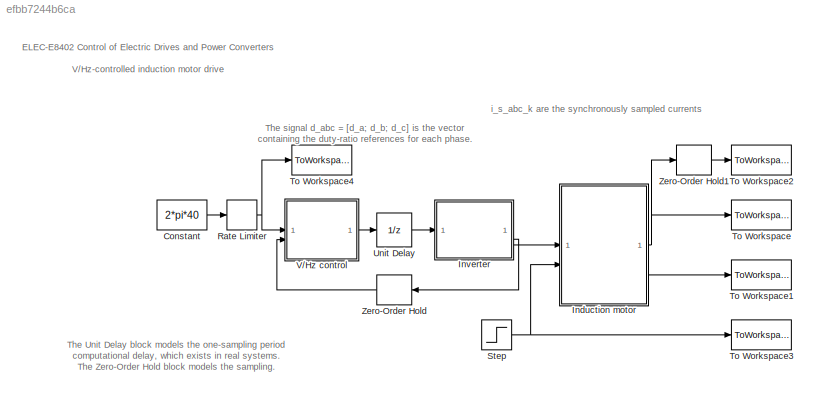
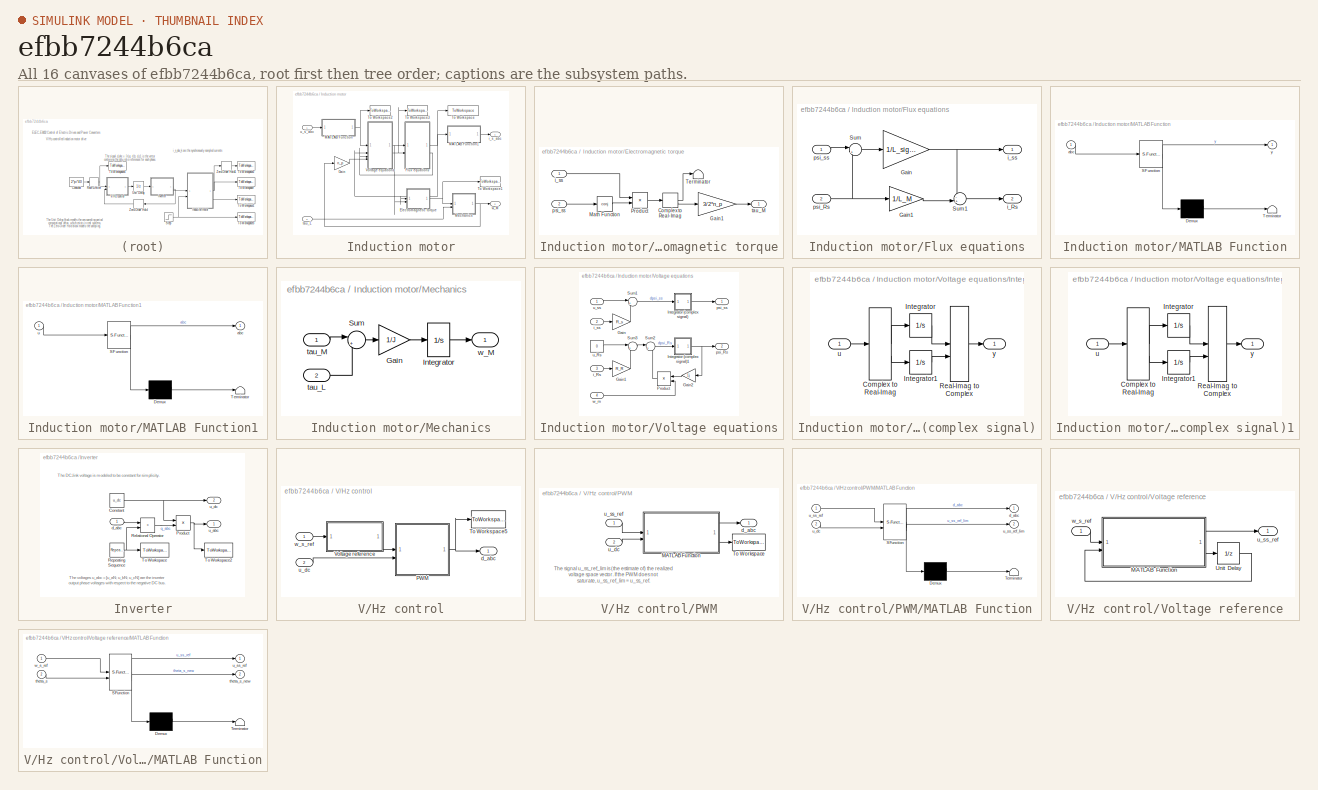
[diagram: thumbnail index - all 16 canvases of the model, root first then tree order]
MODEL slx_efbb7244b6ca
KIND model
CONFIG AbsTol = 1e-3
CONFIG EnableMultiTasking = on
CONFIG FixedStep = auto
CONFIG MaxStep = T_s
CONFIG MinStep = auto
CONFIG RelTol = 1e-3
CONFIG SampleTimeConstraint = Unconstrained
CONFIG SolverName = ode45
CONFIG StartTime = 0
CONFIG StopTime = 1
BLOCK [Constant] Constant
  SampleTime = T_s
  Value = 2*pi*40
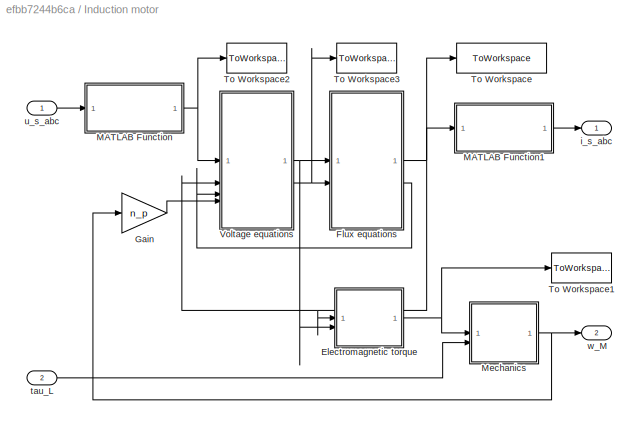
BLOCK [SubSystem] Induction motor
BLOCK [SubSystem] Induction motor/Electromagnetic torque
BLOCK [ComplexToRealImag] Induction motor/Electromagnetic torque/Complex to Real-Imag
BLOCK [Gain] Induction motor/Electromagnetic torque/Gain1
  Gain = 3/2*n_p
BLOCK [Math] Induction motor/Electromagnetic torque/Math Function
  Operator = conj
BLOCK [Product] Induction motor/Electromagnetic torque/Product
BLOCK [Terminator] Induction motor/Electromagnetic torque/Terminator
BLOCK [Inport] Induction motor/Electromagnetic torque/i_ss
BLOCK [Inport] Induction motor/Electromagnetic torque/psi_ss
  Port = 2
BLOCK [Outport] Induction motor/Electromagnetic torque/tau_M
BLOCK [SubSystem] Induction motor/Flux equations
BLOCK [Gain] Induction motor/Flux equations/Gain
  Gain = 1/L_sigma
BLOCK [Gain] Induction motor/Flux equations/Gain1
  Gain = 1/L_M
BLOCK [Sum] Induction motor/Flux equations/Sum
  Inputs = |+-
BLOCK [Sum] Induction motor/Flux equations/Sum1
  Inputs = -+|
BLOCK [Outport] Induction motor/Flux equations/i_Rs
  Port = 2
BLOCK [Outport] Induction motor/Flux equations/i_ss
BLOCK [Inport] Induction motor/Flux equations/psi_Rs
  Port = 2
BLOCK [Inport] Induction motor/Flux equations/psi_ss
BLOCK [Gain] Induction motor/Gain
  Gain = n_p
  OutDataTypeStr = Inherit: Same as input
  ParamDataTypeStr = Inherit: Same as input
  SaturateOnIntegerOverflow = on
BLOCK [SubSystem] Induction motor/MATLAB Function
  ErrorFcn = Stateflow.Translate.translate
  LibrarySourceBlock = simulink/User-Defined\nFunctions/MATLAB Function
  PermitHierarchicalResolution = ExplicitOnly
  SFBlockType = MATLAB Function
  ShowPortLabels = none
  TreatAsAtomicUnit = on
BLOCK [Demux] Induction motor/MATLAB Function/ Demux 
  Outputs = 1
BLOCK [S-Function] Induction motor/MATLAB Function/ SFunction 
  EnableBusSupport = on
  FunctionName = sf_sfun
  PortCounts = [1 2]
  SFcnIsStateOwnerBlock = off
  SFunctionDeploymentMode = off
  Tag = Stateflow S-Function 4
BLOCK [Terminator] Induction motor/MATLAB Function/ Terminator 
BLOCK [Inport] Induction motor/MATLAB Function/abc
BLOCK [Outport] Induction motor/MATLAB Function/y
BLOCK [SubSystem] Induction motor/MATLAB Function1
  ErrorFcn = Stateflow.Translate.translate
  LibrarySourceBlock = simulink/User-Defined\nFunctions/MATLAB Function
  PermitHierarchicalResolution = ExplicitOnly
  SFBlockType = MATLAB Function
  ShowPortLabels = none
  TreatAsAtomicUnit = on
BLOCK [Demux] Induction motor/MATLAB Function1/ Demux 
  Outputs = 1
BLOCK [S-Function] Induction motor/MATLAB Function1/ SFunction 
  EnableBusSupport = on
  FunctionName = sf_sfun
  PortCounts = [1 2]
  SFcnIsStateOwnerBlock = off
  SFunctionDeploymentMode = off
  Tag = Stateflow S-Function 3
BLOCK [Terminator] Induction motor/MATLAB Function1/ Terminator 
BLOCK [Outport] Induction motor/MATLAB Function1/abc
BLOCK [Inport] Induction motor/MATLAB Function1/u
BLOCK [SubSystem] Induction motor/Mechanics
BLOCK [Gain] Induction motor/Mechanics/Gain
  Gain = 1/J
  OutDataTypeStr = Inherit: Same as input
  ParamDataTypeStr = Inherit: Same as input
  SaturateOnIntegerOverflow = on
BLOCK [Integrator] Induction motor/Mechanics/Integrator
BLOCK [Sum] Induction motor/Mechanics/Sum
  InputSameDT = on
  Inputs = |+-
  OutDataTypeStr = Inherit: Same as first input
  SaturateOnIntegerOverflow = on
BLOCK [Inport] Induction motor/Mechanics/tau_L
  Port = 2
BLOCK [Inport] Induction motor/Mechanics/tau_M
BLOCK [Outport] Induction motor/Mechanics/w_M
BLOCK [ToWorkspace] Induction motor/To Workspace
  FixptAsFi = on
  MaxDataPoints = inf
  SampleTime = -1
  SaveFormat = Timeseries
  VariableName = i_ss
BLOCK [ToWorkspace] Induction motor/To Workspace1
  FixptAsFi = on
  MaxDataPoints = inf
  SampleTime = -1
  SaveFormat = Timeseries
  VariableName = tau_M
BLOCK [ToWorkspace] Induction motor/To Workspace2
  FixptAsFi = on
  MaxDataPoints = inf
  SampleTime = -1
  SaveFormat = Timeseries
  VariableName = u_ss
BLOCK [ToWorkspace] Induction motor/To Workspace3
  FixptAsFi = on
  MaxDataPoints = inf
  SampleTime = -1
  SaveFormat = Timeseries
  VariableName = psi_Rs
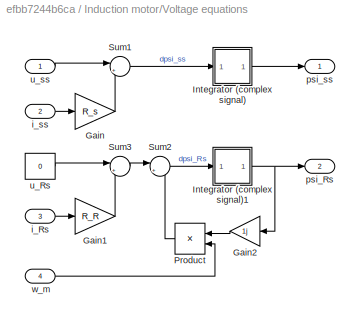
BLOCK [SubSystem] Induction motor/Voltage equations
BLOCK [Gain] Induction motor/Voltage equations/Gain
  Gain = R_s
BLOCK [Gain] Induction motor/Voltage equations/Gain1
  Gain = R_R
BLOCK [Gain] Induction motor/Voltage equations/Gain2
  Gain = 1j
BLOCK [SubSystem] Induction motor/Voltage equations/Integrator (complex signal)
BLOCK [ComplexToRealImag] Induction motor/Voltage equations/Integrator (complex signal)/Complex to Real-Imag
BLOCK [Integrator] Induction motor/Voltage equations/Integrator (complex signal)/Integrator
BLOCK [Integrator] Induction motor/Voltage equations/Integrator (complex signal)/Integrator1
BLOCK [RealImagToComplex] Induction motor/Voltage equations/Integrator (complex signal)/Real-Imag to Complex
BLOCK [Inport] Induction motor/Voltage equations/Integrator (complex signal)/u
BLOCK [Outport] Induction motor/Voltage equations/Integrator (complex signal)/y
BLOCK [SubSystem] Induction motor/Voltage equations/Integrator (complex signal)1
BLOCK [ComplexToRealImag] Induction motor/Voltage equations/Integrator (complex signal)1/Complex to Real-Imag
BLOCK [Integrator] Induction motor/Voltage equations/Integrator (complex signal)1/Integrator
BLOCK [Integrator] Induction motor/Voltage equations/Integrator (complex signal)1/Integrator1
BLOCK [RealImagToComplex] Induction motor/Voltage equations/Integrator (complex signal)1/Real-Imag to Complex
BLOCK [Inport] Induction motor/Voltage equations/Integrator (complex signal)1/u
BLOCK [Outport] Induction motor/Voltage equations/Integrator (complex signal)1/y
BLOCK [Product] Induction motor/Voltage equations/Product
  RndMeth = Zero
BLOCK [Sum] Induction motor/Voltage equations/Sum1
  Inputs = |+-
BLOCK [Sum] Induction motor/Voltage equations/Sum2
  Inputs = |++
BLOCK [Sum] Induction motor/Voltage equations/Sum3
  Inputs = |+-
BLOCK [Inport] Induction motor/Voltage equations/i_Rs
  Port = 3
BLOCK [Inport] Induction motor/Voltage equations/i_ss
  Port = 2
BLOCK [Outport] Induction motor/Voltage equations/psi_Rs
  Port = 2
BLOCK [Outport] Induction motor/Voltage equations/psi_ss
BLOCK [Constant] Induction motor/Voltage equations/u_Rs
  SampleTime = 0
  Value = 0
BLOCK [Inport] Induction motor/Voltage equations/u_ss
BLOCK [Inport] Induction motor/Voltage equations/w_m
  Port = 4
BLOCK [Outport] Induction motor/i_s_abc
BLOCK [Inport] Induction motor/tau_L
  Port = 2
BLOCK [Inport] Induction motor/u_s_abc
BLOCK [Outport] Induction motor/w_M
  Port = 2
BLOCK [SubSystem] Inverter
BLOCK [Constant] Inverter/Constant
  SampleTime = 0
  Value = u_dc
BLOCK [Product] Inverter/Product
BLOCK [RelationalOperator] Inverter/Relational Operator
  InputSameDT = off
  Operator = >
  OutDataTypeStr = boolean
BLOCK [Reference] Inverter/Repeating Sequence  REF=simulink/Sources/Repeating
Sequence
  SourceBlock = simulink/Sources/Repeating\nSequence
  SourceType = Repeating table
BLOCK [ToWorkspace] Inverter/To Workspace
  FixptAsFi = on
  MaxDataPoints = inf
  SampleTime = -1
  SaveFormat = Timeseries
  VariableName = tri
BLOCK [ToWorkspace] Inverter/To Workspace2
  FixptAsFi = on
  MaxDataPoints = inf
  SampleTime = -1
  SaveFormat = Timeseries
  VariableName = u_abc
BLOCK [Inport] Inverter/d_abc
BLOCK [Outport] Inverter/u_abc
BLOCK [Outport] Inverter/u_dc
  Port = 2
BLOCK [RateLimiter] Rate Limiter
  FallingSlewLimit = -2*pi*100
  RisingSlewLimit = 2*pi*100
  SampleTimeMode = inherited
BLOCK [Step] Step
  After = T_L
  SampleTime = 0
  Time = .6
BLOCK [ToWorkspace] To Workspace
  FixptAsFi = on
  MaxDataPoints = inf
  SampleTime = -1
  SaveFormat = Timeseries
  VariableName = i_s_abc
BLOCK [ToWorkspace] To Workspace1
  FixptAsFi = on
  MaxDataPoints = inf
  SampleTime = -1
  SaveFormat = Timeseries
  VariableName = w_M
BLOCK [ToWorkspace] To Workspace2
  FixptAsFi = on
  MaxDataPoints = inf
  SampleTime = -1
  SaveFormat = Timeseries
  VariableName = i_s_abc_k
BLOCK [ToWorkspace] To Workspace3
  FixptAsFi = on
  MaxDataPoints = inf
  SampleTime = -1
  SaveFormat = Timeseries
  VariableName = tau_L
BLOCK [ToWorkspace] To Workspace4
  FixptAsFi = on
  MaxDataPoints = inf
  SampleTime = -1
  SaveFormat = Timeseries
  VariableName = w_s_ref
BLOCK [UnitDelay] Unit Delay
  HasFrameUpgradeWarning = on
  SampleTime = T_s
BLOCK [SubSystem] V//Hz control
BLOCK [SubSystem] V//Hz control/PWM
BLOCK [SubSystem] V//Hz control/PWM/MATLAB Function
  ErrorFcn = Stateflow.Translate.translate
  PermitHierarchicalResolution = ExplicitOnly
  SFBlockType = MATLAB Function
  TreatAsAtomicUnit = on
BLOCK [Demux] V//Hz control/PWM/MATLAB Function/ Demux 
  Outputs = 1
BLOCK [S-Function] V//Hz control/PWM/MATLAB Function/ SFunction 
  EnableBusSupport = on
  FunctionName = sf_sfun
  PortCounts = [2 3]
  SFcnIsStateOwnerBlock = off
  SFunctionDeploymentMode = off
  Tag = Stateflow S-Function 1
BLOCK [Terminator] V//Hz control/PWM/MATLAB Function/ Terminator 
BLOCK [Outport] V//Hz control/PWM/MATLAB Function/d_abc
BLOCK [Inport] V//Hz control/PWM/MATLAB Function/u_dc
  Port = 2
BLOCK [Inport] V//Hz control/PWM/MATLAB Function/u_ss_ref
BLOCK [Outport] V//Hz control/PWM/MATLAB Function/u_ss_ref_lim
  Port = 2
BLOCK [ToWorkspace] V//Hz control/PWM/To Workspace
  FixptAsFi = on
  MaxDataPoints = inf
  SampleTime = -1
  SaveFormat = Timeseries
  VariableName = u_ss_ref_lim
BLOCK [Outport] V//Hz control/PWM/d_abc
BLOCK [Inport] V//Hz control/PWM/u_dc
  Port = 2
BLOCK [Inport] V//Hz control/PWM/u_ss_ref
BLOCK [ToWorkspace] V//Hz control/To Workspace5
  FixptAsFi = on
  MaxDataPoints = inf
  SampleTime = -1
  SaveFormat = Timeseries
  VariableName = d_abc
BLOCK [SubSystem] V//Hz control/Voltage reference
BLOCK [SubSystem] V//Hz control/Voltage reference/MATLAB Function
  ErrorFcn = Stateflow.Translate.translate
  PermitHierarchicalResolution = ExplicitOnly
  SFBlockType = MATLAB Function
  TreatAsAtomicUnit = on
BLOCK [Demux] V//Hz control/Voltage reference/MATLAB Function/ Demux 
  Outputs = 1
BLOCK [S-Function] V//Hz control/Voltage reference/MATLAB Function/ SFunction 
  EnableBusSupport = on
  FunctionName = sf_sfun
  Parameters = T_s,psi_s_ref
  PortCounts = [2 3]
  SFcnIsStateOwnerBlock = off
  SFunctionDeploymentMode = off
  Tag = Stateflow S-Function 2
BLOCK [Terminator] V//Hz control/Voltage reference/MATLAB Function/ Terminator 
BLOCK [Inport] V//Hz control/Voltage reference/MATLAB Function/theta_s
  Port = 2
BLOCK [Outport] V//Hz control/Voltage reference/MATLAB Function/theta_s_new
  Port = 2
BLOCK [Outport] V//Hz control/Voltage reference/MATLAB Function/u_ss_ref
BLOCK [Inport] V//Hz control/Voltage reference/MATLAB Function/w_s_ref
BLOCK [UnitDelay] V//Hz control/Voltage reference/Unit Delay
  HasFrameUpgradeWarning = on
  SampleTime = -1
BLOCK [Outport] V//Hz control/Voltage reference/u_ss_ref
BLOCK [Inport] V//Hz control/Voltage reference/w_s_ref
BLOCK [Outport] V//Hz control/d_abc
BLOCK [Inport] V//Hz control/u_dc
  Port = 2
BLOCK [Inport] V//Hz control/w_s_ref
BLOCK [ZeroOrderHold] Zero-Order Hold
  SampleTime = T_s
BLOCK [ZeroOrderHold] Zero-Order Hold1
  SampleTime = T_s
ANNOTATION (root): ELEC-E8402 Control of Electric Drives and Power Converters V/Hz-controlled induction motor drive
ANNOTATION (root): The Unit Delay block models the one-sampling period computational delay, which exists in real systems. The Zero-Order Hold block models the sampling.
ANNOTATION (root): The signal d_abc = [d_a; d_b; d_c] is the vector containing the duty-ratio references for each phase.
ANNOTATION (root): i_s_abc_k are the synchronously sampled currents
ANNOTATION Inverter: The DC-link voltage is modeled to be constant for simplicity.
ANNOTATION Inverter: The voltages u_abc = [u_aN; u_bN; u_cN] are the inverter output phase voltages with respect to the negative DC bus.
ANNOTATION V//Hz control/PWM: The signal u_ss_ref_lim is (the estimate of) the realized voltage space vector. If the PWM does not saturate, u_ss_ref_lim = u_ss_ref.
LINE Constant:1 -> Rate Limiter:1
LINE Induction motor/Electromagnetic torque/Complex to Real-Imag:1 -> Induction motor/Electromagnetic torque/Terminator:1
LINE Induction motor/Electromagnetic torque/Complex to Real-Imag:2 -> Induction motor/Electromagnetic torque/Gain1:1
LINE Induction motor/Electromagnetic torque/Gain1:1 -> Induction motor/Electromagnetic torque/tau_M:1
LINE Induction motor/Electromagnetic torque/Math Function:1 -> Induction motor/Electromagnetic torque/Product:2
LINE Induction motor/Electromagnetic torque/Product:1 -> Induction motor/Electromagnetic torque/Complex to Real-Imag:1
LINE Induction motor/Electromagnetic torque/i_ss:1 -> Induction motor/Electromagnetic torque/Product:1
LINE Induction motor/Electromagnetic torque/psi_ss:1 -> Induction motor/Electromagnetic torque/Math Function:1
NET Induction motor/Electromagnetic torque:1 -> Induction motor/Mechanics:1, Induction motor/To Workspace1:1
LINE Induction motor/Flux equations/Gain1:1 -> Induction motor/Flux equations/Sum1:2
NET Induction motor/Flux equations/Gain:1 -> Induction motor/Flux equations/Sum1:1, Induction motor/Flux equations/i_ss:1
LINE Induction motor/Flux equations/Sum1:1 -> Induction motor/Flux equations/i_Rs:1
LINE Induction motor/Flux equations/Sum:1 -> Induction motor/Flux equations/Gain:1
NET Induction motor/Flux equations/psi_Rs:1 -> Induction motor/Flux equations/Gain1:1, Induction motor/Flux equations/Sum:2
LINE Induction motor/Flux equations/psi_ss:1 -> Induction motor/Flux equations/Sum:1
NET Induction motor/Flux equations:1 -> Induction motor/Electromagnetic torque:1, Induction motor/MATLAB Function1:1, Induction motor/To Workspace:1, Induction motor/Voltage equations:2
LINE Induction motor/Flux equations:2 -> Induction motor/Voltage equations:3
LINE Induction motor/Gain:1 -> Induction motor/Voltage equations:4
LINE Induction motor/MATLAB Function1:1 -> Induction motor/i_s_abc:1
NET Induction motor/MATLAB Function:1 -> Induction motor/To Workspace2:1, Induction motor/Voltage equations:1
LINE Induction motor/Mechanics/Gain:1 -> Induction motor/Mechanics/Integrator:1
LINE Induction motor/Mechanics/Integrator:1 -> Induction motor/Mechanics/w_M:1
LINE Induction motor/Mechanics/Sum:1 -> Induction motor/Mechanics/Gain:1
LINE Induction motor/Mechanics/tau_L:1 -> Induction motor/Mechanics/Sum:2
LINE Induction motor/Mechanics/tau_M:1 -> Induction motor/Mechanics/Sum:1
NET Induction motor/Mechanics:1 -> Induction motor/Gain:1, Induction motor/w_M:1
LINE Induction motor/Voltage equations/Gain1:1 -> Induction motor/Voltage equations/Sum3:2
LINE Induction motor/Voltage equations/Gain2:1 -> Induction motor/Voltage equations/Product:1
LINE Induction motor/Voltage equations/Gain:1 -> Induction motor/Voltage equations/Sum1:2
LINE Induction motor/Voltage equations/Integrator (complex signal)/Complex to Real-Imag:1 -> Induction motor/Voltage equations/Integrator (complex signal)/Integrator:1
LINE Induction motor/Voltage equations/Integrator (complex signal)/Complex to Real-Imag:2 -> Induction motor/Voltage equations/Integrator (complex signal)/Integrator1:1
LINE Induction motor/Voltage equations/Integrator (complex signal)/Integrator1:1 -> Induction motor/Voltage equations/Integrator (complex signal)/Real-Imag to Complex:2
LINE Induction motor/Voltage equations/Integrator (complex signal)/Integrator:1 -> Induction motor/Voltage equations/Integrator (complex signal)/Real-Imag to Complex:1
LINE Induction motor/Voltage equations/Integrator (complex signal)/Real-Imag to Complex:1 -> Induction motor/Voltage equations/Integrator (complex signal)/y:1
LINE Induction motor/Voltage equations/Integrator (complex signal)/u:1 -> Induction motor/Voltage equations/Integrator (complex signal)/Complex to Real-Imag:1
LINE Induction motor/Voltage equations/Integrator (complex signal)1/Complex to Real-Imag:1 -> Induction motor/Voltage equations/Integrator (complex signal)1/Integrator:1
LINE Induction motor/Voltage equations/Integrator (complex signal)1/Complex to Real-Imag:2 -> Induction motor/Voltage equations/Integrator (complex signal)1/Integrator1:1
LINE Induction motor/Voltage equations/Integrator (complex signal)1/Integrator1:1 -> Induction motor/Voltage equations/Integrator (complex signal)1/Real-Imag to Complex:2
LINE Induction motor/Voltage equations/Integrator (complex signal)1/Integrator:1 -> Induction motor/Voltage equations/Integrator (complex signal)1/Real-Imag to Complex:1
LINE Induction motor/Voltage equations/Integrator (complex signal)1/Real-Imag to Complex:1 -> Induction motor/Voltage equations/Integrator (complex signal)1/y:1
LINE Induction motor/Voltage equations/Integrator (complex signal)1/u:1 -> Induction motor/Voltage equations/Integrator (complex signal)1/Complex to Real-Imag:1
NET Induction motor/Voltage equations/Integrator (complex signal)1:1 -> Induction motor/Voltage equations/Gain2:1, Induction motor/Voltage equations/psi_Rs:1
LINE Induction motor/Voltage equations/Integrator (complex signal):1 -> Induction motor/Voltage equations/psi_ss:1
LINE Induction motor/Voltage equations/Product:1 -> Induction motor/Voltage equations/Sum2:2
LINE Induction motor/Voltage equations/Sum1:1 -> Induction motor/Voltage equations/Integrator (complex signal):1
LINE Induction motor/Voltage equations/Sum2:1 -> Induction motor/Voltage equations/Integrator (complex signal)1:1
LINE Induction motor/Voltage equations/Sum3:1 -> Induction motor/Voltage equations/Sum2:1
LINE Induction motor/Voltage equations/i_Rs:1 -> Induction motor/Voltage equations/Gain1:1
LINE Induction motor/Voltage equations/i_ss:1 -> Induction motor/Voltage equations/Gain:1
LINE Induction motor/Voltage equations/u_Rs:1 -> Induction motor/Voltage equations/Sum3:1
LINE Induction motor/Voltage equations/u_ss:1 -> Induction motor/Voltage equations/Sum1:1
LINE Induction motor/Voltage equations/w_m:1 -> Induction motor/Voltage equations/Product:2
NET Induction motor/Voltage equations:1 -> Induction motor/Electromagnetic torque:2, Induction motor/Flux equations:1
NET Induction motor/Voltage equations:2 -> Induction motor/Flux equations:2, Induction motor/To Workspace3:1
LINE Induction motor/tau_L:1 -> Induction motor/Mechanics:2
LINE Induction motor/u_s_abc:1 -> Induction motor/MATLAB Function:1
NET Induction motor:1 -> To Workspace:1, Zero-Order Hold1:1
LINE Induction motor:2 -> To Workspace1:1
NET Inverter/Constant:1 -> Inverter/Product:1, Inverter/u_dc:1
NET Inverter/Product:1 -> Inverter/To Workspace2:1, Inverter/u_abc:1
LINE Inverter/Relational Operator:1 -> Inverter/Product:2
NET Inverter/Repeating Sequence:1 -> Inverter/Relational Operator:2, Inverter/To Workspace:1
LINE Inverter/d_abc:1 -> Inverter/Relational Operator:1
LINE Inverter:1 -> Induction motor:1
LINE Inverter:2 -> Zero-Order Hold:1
NET Rate Limiter:1 -> To Workspace4:1, V//Hz control:1
NET Step:1 -> Induction motor:2, To Workspace3:1
LINE Unit Delay:1 -> Inverter:1
LINE V//Hz control/PWM/MATLAB Function:1 -> V//Hz control/PWM/d_abc:1
LINE V//Hz control/PWM/MATLAB Function:2 -> V//Hz control/PWM/To Workspace:1
LINE V//Hz control/PWM/u_dc:1 -> V//Hz control/PWM/MATLAB Function:2
LINE V//Hz control/PWM/u_ss_ref:1 -> V//Hz control/PWM/MATLAB Function:1
NET V//Hz control/PWM:1 -> V//Hz control/To Workspace5:1, V//Hz control/d_abc:1
LINE V//Hz control/Voltage reference/MATLAB Function:1 -> V//Hz control/Voltage reference/u_ss_ref:1
LINE V//Hz control/Voltage reference/MATLAB Function:2 -> V//Hz control/Voltage reference/Unit Delay:1
LINE V//Hz control/Voltage reference/Unit Delay:1 -> V//Hz control/Voltage reference/MATLAB Function:2
LINE V//Hz control/Voltage reference/w_s_ref:1 -> V//Hz control/Voltage reference/MATLAB Function:1
LINE V//Hz control/Voltage reference:1 -> V//Hz control/PWM:1
LINE V//Hz control/u_dc:1 -> V//Hz control/PWM:2
LINE V//Hz control/w_s_ref:1 -> V//Hz control/Voltage reference:1
LINE V//Hz control:1 -> Unit Delay:1
LINE Zero-Order Hold1:1 -> To Workspace2:1
LINE Zero-Order Hold:1 -> V//Hz control:2
note: NET lines group one-source signal fan-out (src -> all destinations, sorted); 1:1 wires keep LINE
CHART V//Hz control/PWM/MATLAB Function states=1 transitions=1
  STATE_LABEL 'eML_blk_kernel()'
  STATE_LABEL 'SCRIPT:\nfunction [d_abc, u_ss_ref_lim] = pwm(u_ss_ref, u_dc)\n\n% Components of the voltage space vector\nu_alpha_ref = real(u_ss_ref);\nu_beta_ref  = imag(u_ss_ref);\n\n% Phase-voltage references\nu_a_ref = u_alpha_ref;\nu_b_ref = .5*(-u_alpha_ref + sqrt(3)*u_beta_ref);\nu_c_ref = .5*(-u_alpha_ref - sqrt(3)*u_beta_ref);\n\n% Vector of phase-voltage references\nu_abc_ref = [u_a_ref; u_b_ref; u_c_ref];\n\n% Symm...<+801ch>'
CHART V//Hz control/Voltage reference/MATLAB Function states=1 transitions=1
  STATE_LABEL 'eML_blk_kernel()'
  STATE_LABEL 'SCRIPT:\nfunction [u_ss_ref, theta_s_new] = vhz(w_s_ref, theta_s, psi_s_ref, T_s)\n\n% Voltage vector\n% Note: 1j is the imaginary unit in MATLAB\n% u_ss_ref = ...  % Complete this\nu_ss_ref = psi_s_ref*w_s_ref*exp(1j*theta_s);\n\n% Update (integrate) the voltage angle\ntheta_s_new = theta_s + T_s*w_s_ref;\n\n% Extra information about MATLAB Functions: \n% The inputs, ouputs, and parameters of MATLAB Function...<+265ch>'
CHART Induction motor/MATLAB Function1 states=1 transitions=1
  STATE_LABEL 'eML_blk_kernel()'
  STATE_LABEL 'SCRIPT:\nfunction abc = alphabeta2abc(u)\n\na = real(u);\nb = real(exp(1j*4*pi/3)*u);\nc = real(exp(1j*2*pi/3)*u);\n\nabc = [a; b; c];'
CHART Induction motor/MATLAB Function states=1 transitions=1
  STATE_LABEL 'eML_blk_kernel()'
  STATE_LABEL 'SCRIPT:\nfunction y = abc2alphabeta(abc)\n\ny = 2/3*(abc(1) + exp(1j*2*pi/3)*abc(2) + exp(1j*4*pi/3)*abc(3));\n'
CHART  states=0 transitions=0
CHART  states=0 transitions=0
CHART  states=0 transitions=0
CHART  states=0 transitions=0
